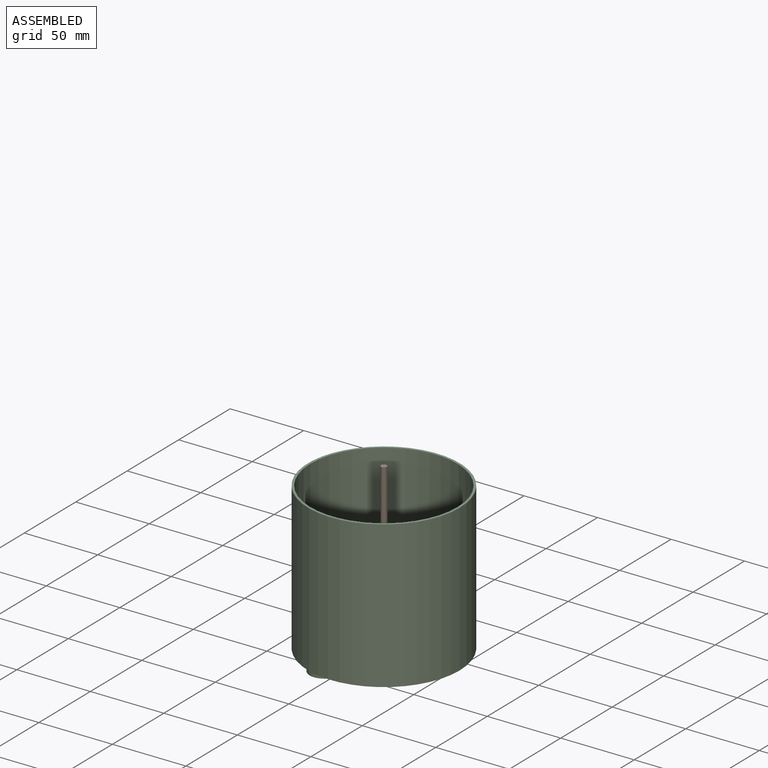
[diagram: assembled view]
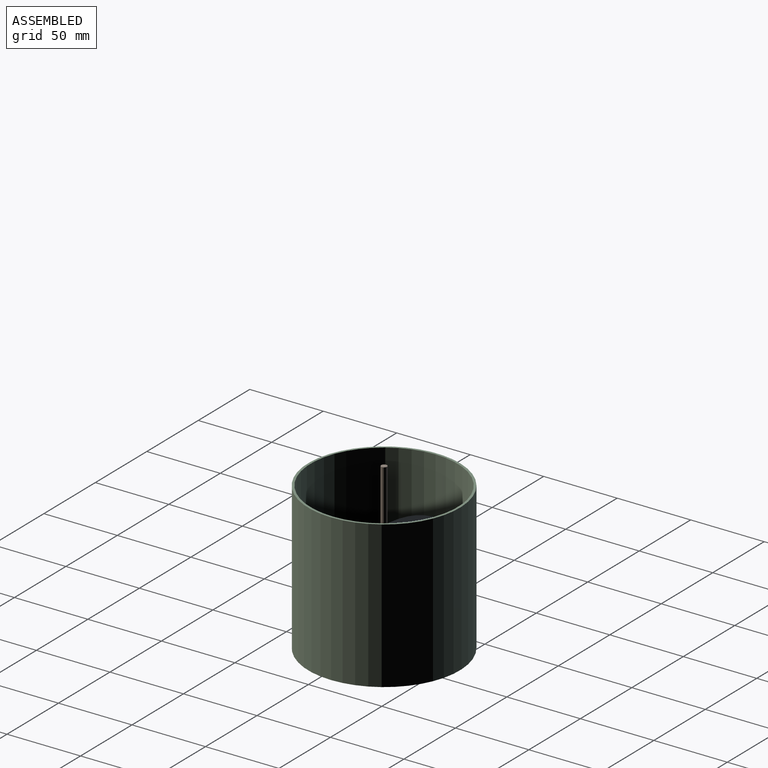
[diagram: assembled view, second angle]
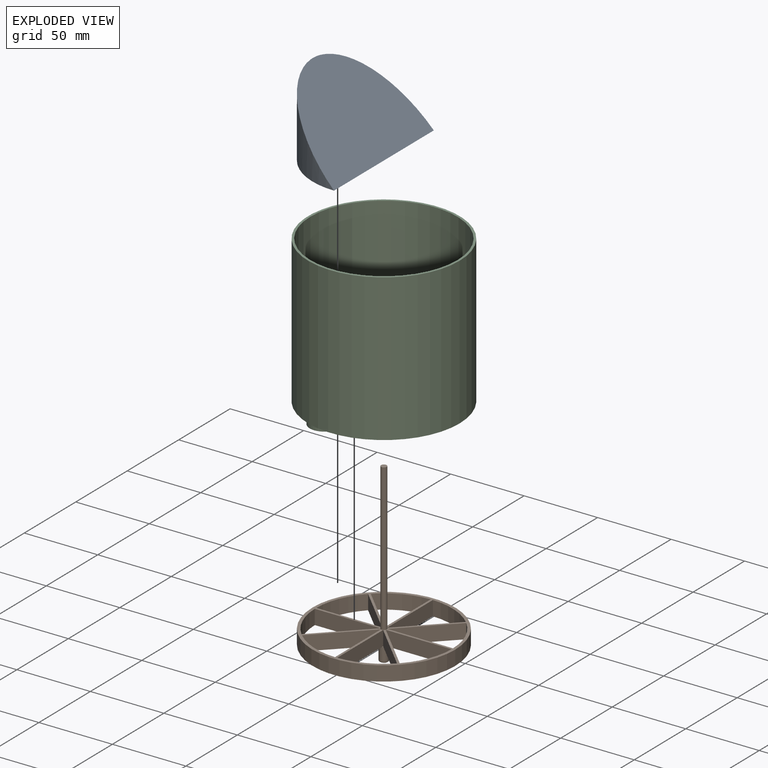
[diagram: exploded view]
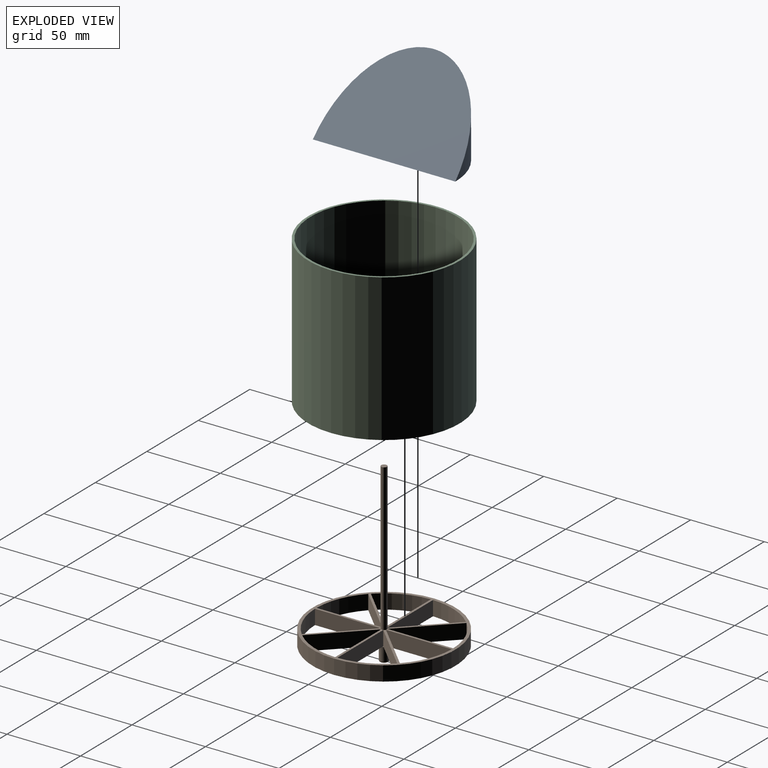
[diagram: exploded view, second angle]
ASSEMBLY  parts=3 mates=2
PART A: 4 faces, bbox 48.5x97x50 mm
  f0: cylinder r=48.5mm len=97mm, axis (0,0,-1), area 4852mm2, adj f1,f2,f3
  f1: plane 2.83x0.02mm, normal (0,0,1), area 0mm2, adj f0,f3
  f2: plane 97x48.5mm, normal (0,0,-1), area 3694.9mm2, adj f0,f3
  f3: plane 97x50mm, normal (0.72,0,0.7), area 5307.9mm2, adj f0,f1,f2
PART B: 40 faces, bbox 97x97x120 mm
  f0: plane 31.6x31.6mm, normal (0.71,-0.71,0), area 446.8mm2, adj f1,f16,f25,f26,f33
  f1: plane 44.68x10mm, normal (-1,0,0), area 446.8mm2, adj f0,f16,f25,f26,f33
  f2: cylinder r=46.5mm len=31.6mm, axis (0,0,-1), area 350.2mm2, adj f3,f17,f25,f26
  f3: plane 31.6x31.6mm, normal (-0.71,-0.71,0), area 446.8mm2, adj f2,f17,f25,f26,f32
  f4: cylinder r=46.5mm len=31.6mm, axis (0,0,-1), area 350.2mm2, adj f5,f18,f25,f26
  f5: plane 44.68x10mm, normal (-1,0,0), area 446.8mm2, adj f4,f18,f25,f26,f31
  f6: cylinder r=46.5mm len=31.6mm, axis (0,0,-1), area 350.2mm2, adj f7,f19,f25,f26
  f7: plane 31.6x31.6mm, normal (-0.71,0.71,0), area 446.8mm2, adj f6,f19,f25,f26,f30
  f8: plane 31.6x31.6mm, normal (0.71,-0.71,0), area 446.8mm2, adj f9,f20,f25,f26,f29
  f9: cylinder r=46.5mm len=31.6mm, axis (0,0,-1), area 350.2mm2, adj f8,f20,f25,f26
  f10: cylinder r=46.5mm len=31.6mm, axis (0,0,-1), area 350.2mm2, adj f11,f21,f25,f26
  f11: plane 31.6x31.6mm, normal (0.71,0.71,0), area 446.8mm2, adj f10,f21,f25,f26,f28
  f12: plane 31.6x31.6mm, normal (-0.71,-0.71,0), area 446.8mm2, adj f13,f22,f25,f26,f27
  f13: cylinder r=46.5mm len=31.6mm, axis (0,0,-1), area 350.2mm2, adj f12,f22,f25,f26
  f14: cylinder r=46.5mm len=31.6mm, axis (0,0,-1), area 350.2mm2, adj f15,f23,f25,f26
  f15: plane 44.68x10mm, normal (0,-1,0), area 446.8mm2, adj f14,f23,f25,f26,f36
  f16: cylinder r=46.5mm len=31.6mm, axis (0,0,-1), area 350.2mm2, adj f0,f1,f25,f26
  f17: plane 44.68x10mm, normal (0,1,0), area 446.8mm2, adj f2,f3,f25,f26,f32
  f18: plane 31.6x31.6mm, normal (0.71,0.71,0), area 446.8mm2, adj f4,f5,f25,f26,f31
  f19: plane 44.68x10mm, normal (1,0,0), area 446.8mm2, adj f6,f7,f25,f26,f30
  f20: plane 44.68x10mm, normal (0,1,0), area 446.8mm2, adj f8,f9,f25,f26,f29
  f21: plane 44.68x10mm, normal (0,-1,0), area 446.8mm2, adj f10,f11,f25,f26,f28
  f22: plane 44.68x10mm, normal (1,0,0), area 446.8mm2, adj f12,f13,f25,f26,f27
  f23: plane 31.6x31.6mm, normal (-0.71,0.71,0), area 446.8mm2, adj f14,f15,f25,f26,f36
  f24: cylinder r=48.5mm len=97mm, axis (0,0,-1), area 3047.3mm2, adj f25,f26
  f25: plane 97x97mm, normal (0,0,1), area 1131.9mm2, adj f0,f1,f2,f3,f4,f5,f6,f7
  f26: plane 97x97mm, normal (0,0,-1), area 1119.3mm2, adj f0,f1,f2,f3,f4,f5,f6,f7
  f27: plane 1.09x0.77mm, normal (0,0,1), area 0.4mm2, adj f12,f22,f34
  f28: plane 1.09x0.77mm, normal (0,0,1), area 0.4mm2, adj f11,f21,f34
  f29: plane 1.09x0.77mm, normal (0,0,1), area 0.4mm2, adj f8,f20,f34
  f30: plane 1.09x0.77mm, normal (0,0,1), area 0.4mm2, adj f7,f19,f34
  f31: plane 1.09x0.77mm, normal (0,0,1), area 0.4mm2, adj f5,f18,f34
  f32: plane 1.09x0.77mm, normal (0,0,1), area 0.4mm2, adj f3,f17,f34
  f33: plane 1.09x0.77mm, normal (0,0,1), area 0.4mm2, adj f0,f1,f34
  f34: cylinder r=3mm len=9mm, axis (0,0,1), area 169.6mm2, adj f26,f27,f28,f29,f30,f31,f32,f33
  f35: plane 4x4mm, normal (0,0,-1), area 12.6mm2, adj f37
  f36: plane 1.09x0.77mm, normal (0,0,1), area 0.4mm2, adj f15,f23,f34
  f37: torus R=2mm, axis (0,0,-1), area 26mm2, adj f34,f35
  f38: cylinder r=1.96mm len=100mm, axis (0,0,-1), area 1231.4mm2, adj f25,f39
  f39: plane 3.92x3.92mm, normal (0,0,1), area 12.1mm2, adj f38
PART C: 12 faces, bbox 103x103x125 mm
  f0: plane 100x100mm, normal (0,0,1), area 7598.7mm2, adj f1,f5,f10
  f1: cylinder r=50mm len=100mm, axis (0,0,-1), area 30944.7mm2, adj f0,f3
  f2: cylinder r=51.5mm len=103mm, axis (0,0,-1), area 32358.4mm2, adj f3,f4
  f3: plane 103x103mm, normal (0,0,1), area 478.3mm2, adj f1,f2
  f4: plane 103x103mm, normal (0,0,-1), area 7989.9mm2, adj f2,f5,f7
  f5: cylinder r=3mm len=6mm, axis (0,0,-1), area 28.3mm2, adj f0,f4
  f6: cylinder r=8.5mm len=25mm, axis (0,0,-1), area 709.9mm2, adj f8,f9,f10,f11
  f7: cylinder r=10mm len=25mm, axis (0,0,-1), area 1570.8mm2, adj f4,f8
  f8: plane 20x20mm, normal (0,0,-1), area 87.2mm2, adj f6,f7
  f9: plane 17x8.55mm, normal (0,0,-1), area 1.6mm2, adj f6,f10
  f10: cylinder r=8.5mm len=25mm, axis (0,0,1), area 709.9mm2, adj f0,f6,f9,f11
  f11: plane 17x8.55mm, normal (0,0,1), area 1.6mm2, adj f6,f10
PLACE A t=(-14.34,-8.53,-25.87)mm
PLACE B t=(-14.34,-8.53,-35.87)mm
PLACE C t=(-14.34,-8.53,-37.87)mm
MATE revolute B.f34 <-> C.f5  axis (0,0,-1) through (-14.34,-8.53,-45.87)mm
MATE fastened A.f0 <-> B.f38  axis (0,0,-1) through (-14.34,-8.53,-25.87)mm
